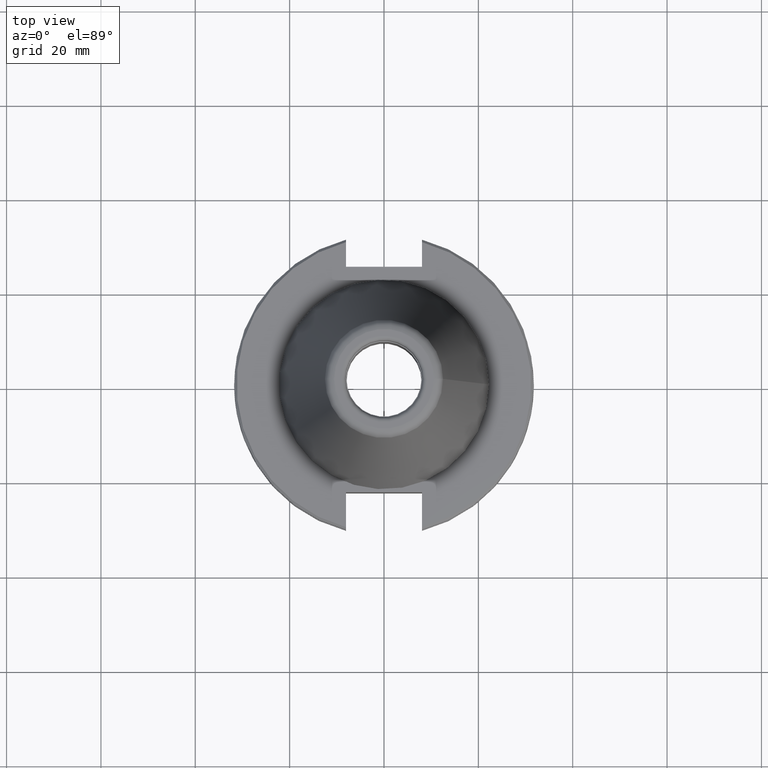
[diagram: clean part render]
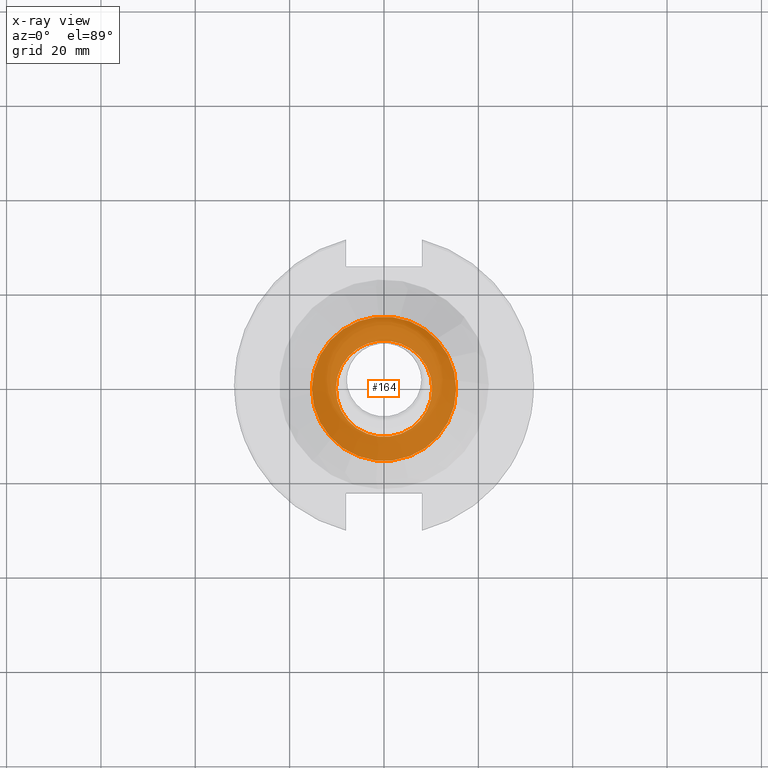
[diagram: x-ray — body ghosted, one internal face saturated and labeled with its STEP entity id]
A machine part, top view, then the same camera in x-ray: the body is ghosted and one INTERNAL B-rep face — a face not visible from any outside direction — is saturated and labeled: STEP entity #164.
In plain terms, the highlighted planar face has unit normal (0, 0, -1).
Its self-contained STEP definition (entity closure, byte-faithful):
#72 = DIRECTION ( 'NONE',  ( 1.000000000000000000, 0.0000000000000000000, 0.0000000000000000000 ) ) ;
#92 = VERTEX_POINT ( 'NONE', #1049 ) ;
#111 = CARTESIAN_POINT ( 'NONE',  ( 10.19999999999998685, 0.0000000000000000000, -54.30000000000001137 ) ) ;
#164 = ADVANCED_FACE ( 'NONE', ( #302, #1246 ), #958, .F. ) ;
#214 = AXIS2_PLACEMENT_3D ( 'NONE', #1323, #1968, #1477 ) ;
#302 = FACE_BOUND ( 'NONE', #1354, .T. ) ;
#665 = ORIENTED_EDGE ( 'NONE', *, *, #816, .T. ) ;
#702 = CARTESIAN_POINT ( 'NONE',  ( 0.0000000000000000000, 0.0000000000000000000, -54.30000000000001137 ) ) ;
#753 = DIRECTION ( 'NONE',  ( -1.000000000000000000, 0.0000000000000000000, -0.0000000000000000000 ) ) ;
#806 = EDGE_CURVE ( 'NONE', #1607, #1607, #1585, .T. ) ;
#816 = EDGE_CURVE ( 'NONE', #92, #92, #1443, .T. ) ;
#958 = PLANE ( 'NONE',  #1325 ) ;
#994 = CARTESIAN_POINT ( 'NONE',  ( 0.0000000000000000000, 10.19999999999998685, -54.30000000000001137 ) ) ;
#1049 = CARTESIAN_POINT ( 'NONE',  ( 15.30000000000000782, 0.0000000000000000000, -54.30000000000001137 ) ) ;
#1187 = DIRECTION ( 'NONE',  ( -0.0000000000000000000, -0.0000000000000000000, 1.000000000000000000 ) ) ;
#1246 = FACE_OUTER_BOUND ( 'NONE', #1820, .T. ) ;
#1323 = CARTESIAN_POINT ( 'NONE',  ( 0.0000000000000000000, 0.0000000000000000000, -54.30000000000001137 ) ) ;
#1325 = AXIS2_PLACEMENT_3D ( 'NONE', #994, #1468, #753 ) ;
#1354 = EDGE_LOOP ( 'NONE', ( #1400 ) ) ;
#1400 = ORIENTED_EDGE ( 'NONE', *, *, #806, .F. ) ;
#1443 = CIRCLE ( 'NONE', #2025, 15.30000000000000782 ) ;
#1468 = DIRECTION ( 'NONE',  ( 0.0000000000000000000, 0.0000000000000000000, -1.000000000000000000 ) ) ;
#1477 = DIRECTION ( 'NONE',  ( 1.000000000000000000, 0.0000000000000000000, 0.0000000000000000000 ) ) ;
#1585 = CIRCLE ( 'NONE', #214, 10.19999999999998685 ) ;
#1607 = VERTEX_POINT ( 'NONE', #111 ) ;
#1820 = EDGE_LOOP ( 'NONE', ( #665 ) ) ;
#1968 = DIRECTION ( 'NONE',  ( -0.0000000000000000000, -0.0000000000000000000, 1.000000000000000000 ) ) ;
#2025 = AXIS2_PLACEMENT_3D ( 'NONE', #702, #1187, #72 ) ;